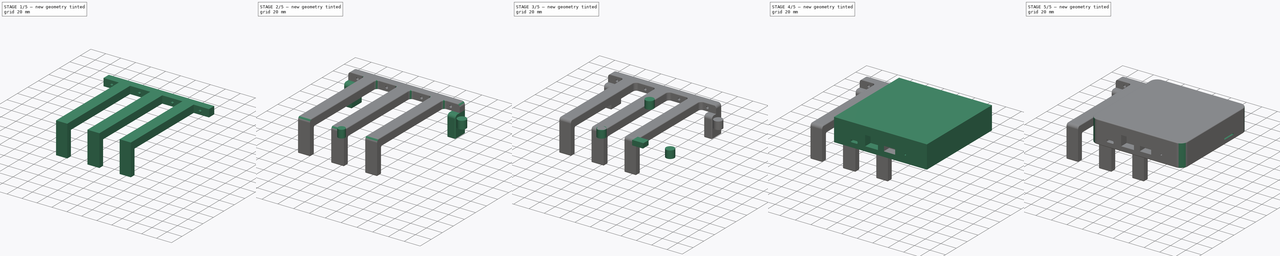
[diagram: build sequence overview — one tinted view per stage of 5, left to right]
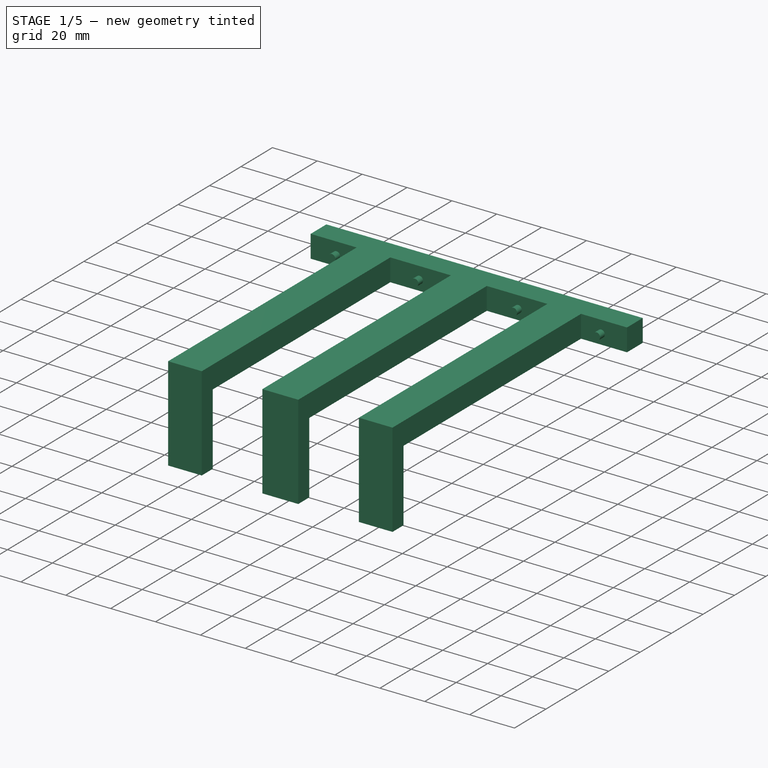
[diagram: stage 1 of 5 — iso view after this stage's code; geometry added in this stage tinted green]
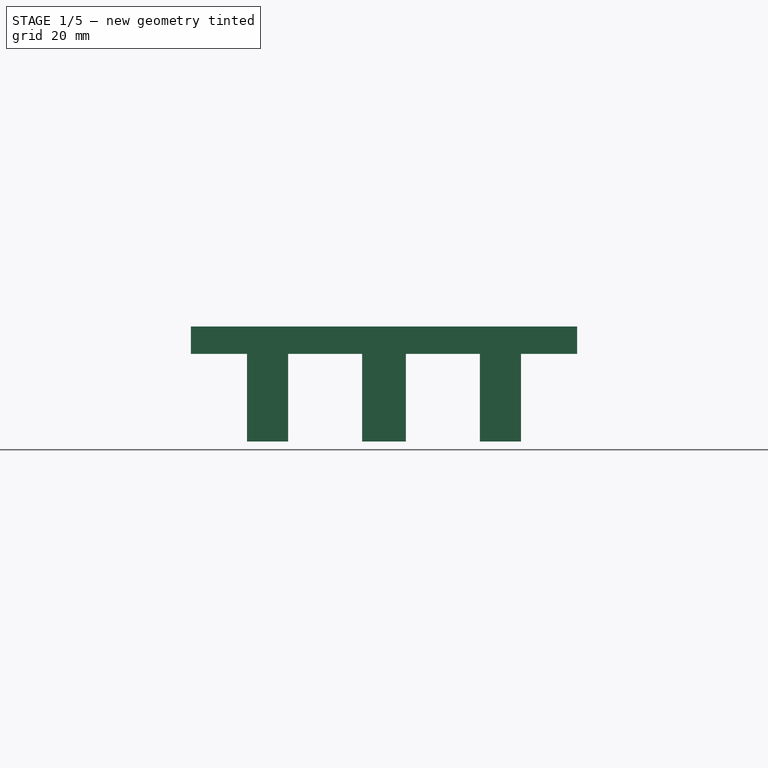
[diagram: stage 1 of 5 — front view after this stage's code; geometry added in this stage tinted green]
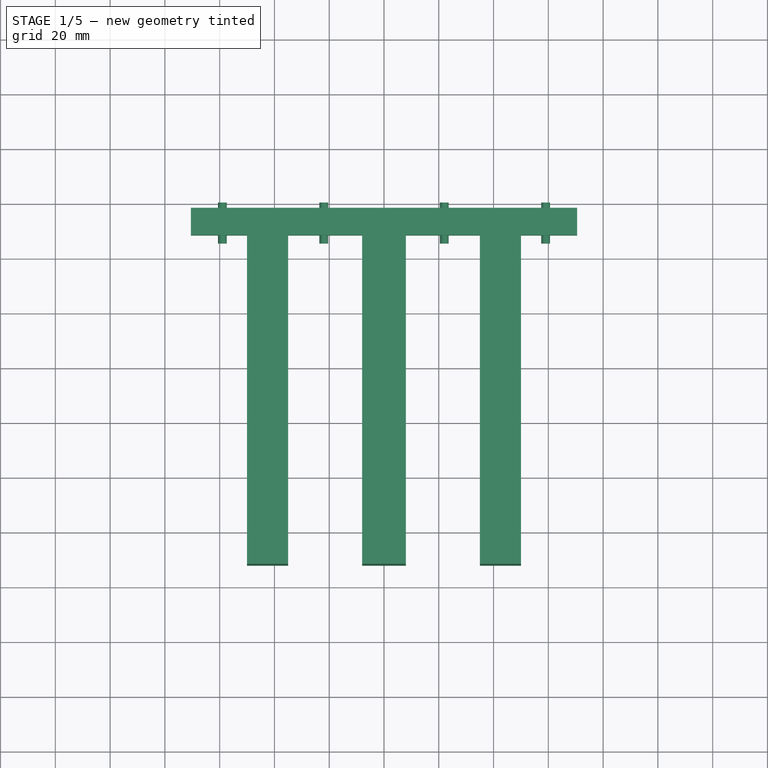
[diagram: stage 1 of 5 — top view after this stage's code; geometry added in this stage tinted green]
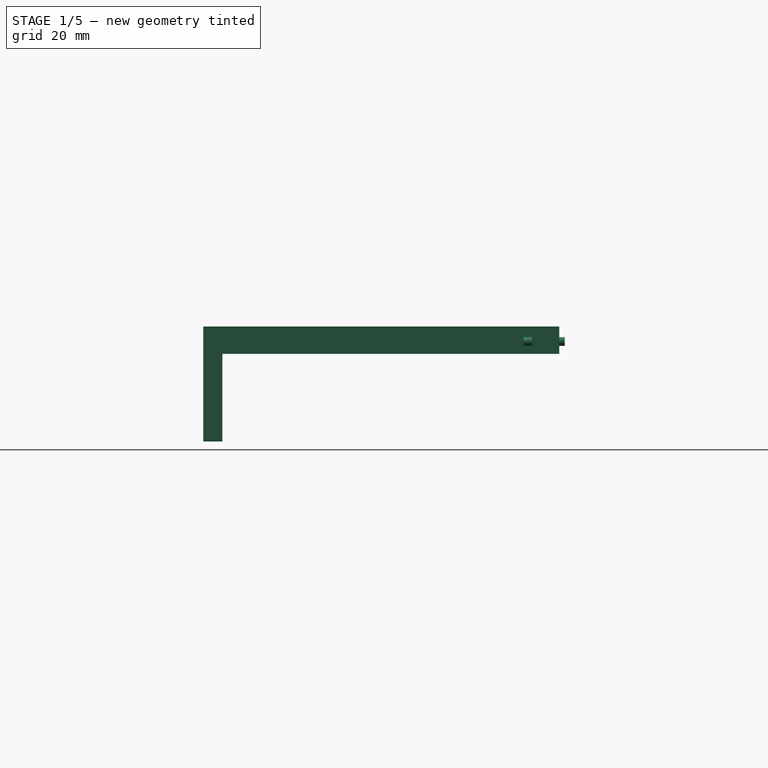
[diagram: stage 1 of 5 — right view after this stage's code; geometry added in this stage tinted green]
FCSTD DOCUMENT  (FreeCAD 1.0R39109 (Git))
Label: LoRaGatewayHolder
License: All rights reserved
LicenseURL: https://en.wikipedia.org/wiki/All_rights_reserved
objects: Part::Feature×23, Part::Cylinder×16, Part::Box×10, Part::Cut×7, Part::MultiFuse×7, Part::Fillet×5, App::Part×4, Sketcher::SketchObject×1, Part::Extrusion×1
note: 71 computed .brp shape members not serialized (recipe doc carries the construction recipe); baked Part::Feature solids carry a one-line shape summary decoded from their .brp

FEATURE [Part::Box] Box031  label="Top_left001"
  AttacherType = Attacher::AttachEngine3D
  Height = 32
  Length = 15
  Placement = pos=(-50,28,-43.5) rot=(0,0,1;0rad)
  Width = 7
FEATURE [Part::Box] Box032  label="Top_right001"
  AttacherType = Attacher::AttachEngine3D
  Height = 32
  Length = 15
  Placement = pos=(35,28,-43.5) rot=(0,0,1;0rad)
  Width = 7
FEATURE [Part::Box] Box033  label="Top_middle001"
  AttacherType = Attacher::AttachEngine3D
  Height = 32
  Length = 16
  Placement = pos=(-8,28,-43.5) rot=(0,0,1;0rad)
  Width = 7
FEATURE [Part::Cylinder] Cylinder023  label="m3_l001"
  Angle = 360
  AttacherType = Attacher::AttachEngine3D
  FirstAngle = 0
  Height = 15
  Placement = pos=(-59,160,-7) rot=(1,0,0;1.5708rad)
  Radius = 1.6
  SecondAngle = 0
FEATURE [Part::Cylinder] Cylinder024  label="m3_r001"
  Angle = 360
  AttacherType = Attacher::AttachEngine3D
  FirstAngle = 0
  Height = 15
  Placement = pos=(59,160,-7) rot=(1,0,0;1.5708rad)
  Radius = 1.6
  SecondAngle = 0
FEATURE [Part::Cylinder] Cylinder025  label="m3_lm001"
  Angle = 360
  AttacherType = Attacher::AttachEngine3D
  FirstAngle = 0
  Height = 15
  Placement = pos=(-22,160,-7) rot=(1,0,0;1.5708rad)
  Radius = 1.6
  SecondAngle = 0
FEATURE [Part::Cylinder] Cylinder026  label="m3_rm001"
  Angle = 360
  AttacherType = Attacher::AttachEngine3D
  FirstAngle = 0
  Height = 15
  Placement = pos=(22,160,-7) rot=(1,0,0;1.5708rad)
  Radius = 1.6
  SecondAngle = 0
FEATURE [Part::MultiFuse] Fusion014  label="m3_screws"
  Shapes = -> [Cylinder023,Cylinder024,Cylinder025,Cylinder026]
FEATURE [Part::Feature] Part__Feature269  label="USB3.1 TYPE-C 24PF-009 v6"
  shape: bbox 9.146 x 4.6 x 10.65 mm, 537 faces (baked)
FEATURE [Part::Feature] Part__Feature270  label="USB3.1 TYPE-C 24PF-009 v007"
  shape: bbox 8.34 x 3.8 x 10 mm, 300 faces (baked)
FEATURE [Part::Feature] Part__Feature271  label="USB3.1 TYPE-C 24PF-009 v008"
  shape: bbox 5.75 x 2.5 x 8.484 mm, 354 faces (baked)
FEATURE [Part::Feature] Part__Feature272  label="COMPOUND019"
  Placement = pos=(0,-0.0056,0.0002) rot=(0,0,1;0rad)
  shape: bbox 0.4 x 3.65 x 1.05 mm, 24 faces (baked)
FEATURE [Part::Feature] Part__Feature273  label="Antenna Mount"
  Placement = pos=(15,63,10.75) rot=(0,0,1;0rad)
  shape: bbox 9.247 x 12.26 x 8.009 mm, 76 faces (baked)
FEATURE [Part::Feature] Part__Feature274  label="COMPOUND020"
  Placement = pos=(0,-0.0056,0.0002) rot=(0,0,1;0rad)
  shape: bbox 18.9 x 15.9 x 13.25 mm, 232 faces (baked)
FEATURE [Part::Feature] Part__Feature275  label="COMPOUND021"
  Placement = pos=(0,-0.0056,0.0002) rot=(0,0,1;0rad)
  shape: bbox 0.4 x 3.65 x 1.05 mm, 24 faces (baked)
FEATURE [Part::Feature] Part__Feature276  label="COMPOUND022"
  Placement = pos=(0,-0.0056,0.0002) rot=(0,0,1;0rad)
  shape: bbox 0.4 x 3.65 x 1.05 mm, 24 faces (baked)
FEATURE [Part::Feature] Part__Feature277  label="COMPOUND023"
  Placement = pos=(0,-0.0056,0.0002) rot=(0,0,1;0rad)
  shape: bbox 0.4 x 3.65 x 1.05 mm, 24 faces (baked)
FEATURE [Part::Feature] Part__Feature278  label="COMPOUND024"
  Placement = pos=(0,-0.0056,0.0002) rot=(0,0,1;0rad)
  shape: bbox 0.4 x 3.65 x 1.05 mm, 24 faces (baked)
FEATURE [Part::Feature] Part__Feature279  label="COMPOUND025"
  Placement = pos=(0,-0.0056,0.0002) rot=(0,0,1;0rad)
  shape: bbox 0.4 x 3.65 x 1.05 mm, 24 faces (baked)
FEATURE [Part::Feature] Part__Feature280  label="COMPOUND026"
  Placement = pos=(0,-0.0056,0.0002) rot=(0,0,1;0rad)
  shape: bbox 0.4 x 3.65 x 1.05 mm, 24 faces (baked)
FEATURE [Part::Feature] Part__Feature281  label="COMPOUND027"
  Placement = pos=(0,-0.0056,0.0002) rot=(0,0,1;0rad)
  shape: bbox 0.4 x 3.65 x 1.05 mm, 24 faces (baked)
FEATURE [Part::Feature] Part__Feature282  label="COMPOUND028"
  Placement = pos=(0,-0.0056,0.0002) rot=(0,0,1;0rad)
  shape: bbox 15.81 x 15.25 x 13.95 mm, 39 faces (baked)
FEATURE [Part::Feature] Part__Feature283  label="COMPOUND029"
  Placement = pos=(0,-0.0056,0.0002) rot=(0,0,1;0rad)
  shape: bbox 0.4 x 11.61 x 3.651 mm, 6 faces (baked)
FEATURE [Part::Feature] Part__Feature284  label="COMPOUND030"
  Placement = pos=(0,-0.0056,0.0002) rot=(0,0,1;0rad)
  shape: bbox 0.4 x 11.61 x 3.651 mm, 6 faces (baked)
FEATURE [Part::Feature] Part__Feature285  label="COMPOUND031"
  Placement = pos=(0,-0.0056,0.0002) rot=(0,0,1;0rad)
  shape: bbox 0.4 x 11.61 x 3.651 mm, 6 faces (baked)
FEATURE [Part::Feature] Part__Feature286  label="COMPOUND032"
  Placement = pos=(0,-0.0056,0.0002) rot=(0,0,1;0rad)
  shape: bbox 0.4 x 11.61 x 3.651 mm, 6 faces (baked)
FEATURE [Part::Feature] Part__Feature287  label="COMPOUND033"
  Placement = pos=(0,-0.0056,0.0002) rot=(0,0,1;0rad)
  shape: bbox 0.4 x 11.61 x 3.651 mm, 6 faces (baked)
FEATURE [Part::Feature] Part__Feature288  label="COMPOUND034"
  Placement = pos=(0,-0.0056,0.0002) rot=(0,0,1;0rad)
  shape: bbox 0.4 x 11.61 x 3.651 mm, 6 faces (baked)
FEATURE [Part::Feature] Part__Feature289  label="COMPOUND035"
  Placement = pos=(0,-0.0056,0.0002) rot=(0,0,1;0rad)
  shape: bbox 0.4 x 11.61 x 3.651 mm, 6 faces (baked)
FEATURE [Part::Feature] Part__Feature290  label="COMPOUND036"
  Placement = pos=(0,-0.0056,0.0002) rot=(0,0,1;0rad)
  shape: bbox 0.4 x 11.61 x 3.651 mm, 6 faces (baked)
FEATURE [App::Part] COMPOUND001  label="COMPOUND018"
  Group = -> [Part__Feature274,Part__Feature275,Part__Feature276,Part__Feature272,Part__Feature277,Part__Feature278,Part__Feature279,Part__Feature280,Part__Feature281,Part__Feature282,Part__Feature283,Part__Feature284,Part__Feature285,Part__Feature286,Part__Feature287,Part__Feature288,Part__Feature289,Part__Feature290]
  Origin = -> Origin029
  Placement = pos=(48.5,5.5,19.25) rot=(0,1,0;3.14159rad)
FEATURE [Part::Feature] Part__Feature291  label="USB-type-A(USBR-A-S-F-O-VU)"
  Placement = pos=(71.75,7.25,6.75) rot=(1,0,0;1.5708rad)
  shape: bbox 18.32 x 19.2 x 7.2 mm, 244 faces (baked)
FEATURE [Sketcher::SketchObject] Sketch003
  ArcFitTolerance = 0
  FullyConstrained = true
  MakeInternals = false
  sketch-geometry (16):
    g0: LineSegment StartX=-70.5 StartY=157.37 StartZ=0 EndX=70.5 EndY=157.37 EndZ=0
    g1: LineSegment StartX=-70.5 StartY=157.37 StartZ=0 EndX=-70.5 EndY=147.37 EndZ=0
    g2: LineSegment StartX=-70.5 StartY=147.37 StartZ=0 EndX=-50 EndY=147.37 EndZ=0
    g3: LineSegment StartX=-50 StartY=147.37 StartZ=0 EndX=-50 EndY=27.37 EndZ=0
    g4: LineSegment StartX=-50 StartY=27.37 StartZ=0 EndX=-35 EndY=27.37 EndZ=0
    g5: LineSegment StartX=-35 StartY=27.37 StartZ=0 EndX=-35 EndY=147.37 EndZ=0
    g6: LineSegment StartX=-35 StartY=147.37 StartZ=0 EndX=-8 EndY=147.37 EndZ=0
    g7: LineSegment StartX=-8 StartY=147.37 StartZ=0 EndX=-8 EndY=27.37 EndZ=0
    g8: LineSegment StartX=-8 StartY=27.37 StartZ=0 EndX=8 EndY=27.37 EndZ=0
    g9: LineSegment StartX=8 StartY=27.37 StartZ=0 EndX=8 EndY=147.37 EndZ=0
    g10: LineSegment StartX=8 StartY=147.37 StartZ=0 EndX=35 EndY=147.37 EndZ=0
    g11: LineSegment StartX=35 StartY=147.37 StartZ=0 EndX=35 EndY=27.37 EndZ=0
    g12: LineSegment StartX=35 StartY=27.37 StartZ=0 EndX=50 EndY=27.37 EndZ=0
    g13: LineSegment StartX=50 StartY=27.37 StartZ=0 EndX=50 EndY=147.37 EndZ=0
    g14: LineSegment StartX=50 StartY=147.37 StartZ=0 EndX=70.5 EndY=147.37 EndZ=0
    g15: LineSegment StartX=70.5 StartY=147.37 StartZ=0 EndX=70.5 EndY=157.37 EndZ=0
  constraints (44):
    c: Symmetric(g0,g0,g-2)
    c: Distance(g0) = 141
    c: Coincident(g1,g0)
    c: Vertical(g1)
    c: Coincident(g2,g1)
    c: Horizontal(g2)
    c: Vertical(g3)
    c: Coincident(g4,g3)
    c: Horizontal(g4)
    c: Coincident(g5,g4)
    c: Vertical(g5)
    c: Coincident(g6,g5)
    c: Horizontal(g6)
    c: Coincident(g7,g6)
    c: Vertical(g7)
    c: Coincident(g8,g7)
    c: Horizontal(g8)
    c: Coincident(g9,g8)
    c: Vertical(g9)
    c: Coincident(g10,g9)
    c: Coincident(g11,g10)
    c: Vertical(g11)
    c: Coincident(g12,g11)
    c: Horizontal(g12)
    c: Coincident(g13,g12)
    c: Vertical(g13)
    c: Coincident(g14,g13)
    c: Horizontal(g14)
    c: Coincident(g15,g14)
    c: Coincident(g15,g0)
    c: Vertical(g15)
    c: Symmetric(g6,g9,g-2)
    c: Symmetric(g5,g10,g-2)
    c: Symmetric(g2,g13,g-2)
    c: Coincident(g2,g3)
    c: Distance(g2,g0) = 10
    c: Distance(g5,g0) = 10
    c: Distance(g3) = 120
    c: Distance(g4) = 15
    c: Distance(g8) = 16
    c: Distance(g9) = 120
    c: Distance(g13) = 120
    c: Distance(g1,g-1) = 147.37
    c: Distance(g3,g-2) = 50
FEATURE [Part::Extrusion] Extrude003  label="Side__hold001"
  Base = -> Sketch003
  Dir = (0,0,1)
  DirMode = 2
  FaceMakerClass = Part::FaceMakerBullseye
  FaceMakerMode = 3
  LengthFwd = 10
  LengthRev = 0
  Placement = pos=(0,0.63,-1.5) rot=(0,0,1;0rad)
  Reversed = true
  Solid = true
  Symmetric = false
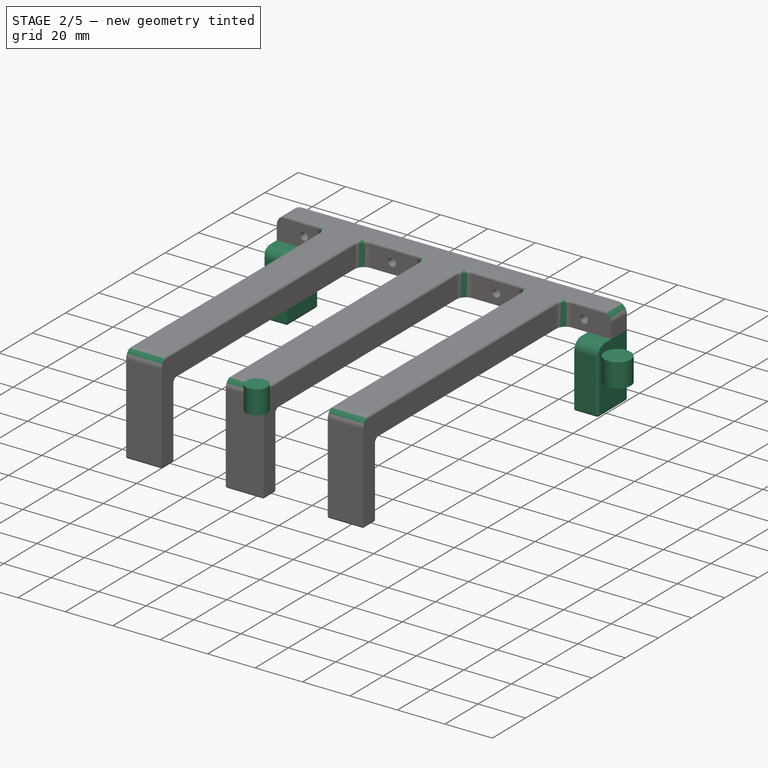
[diagram: stage 2 of 5 — iso view after this stage's code; geometry added in this stage tinted green]
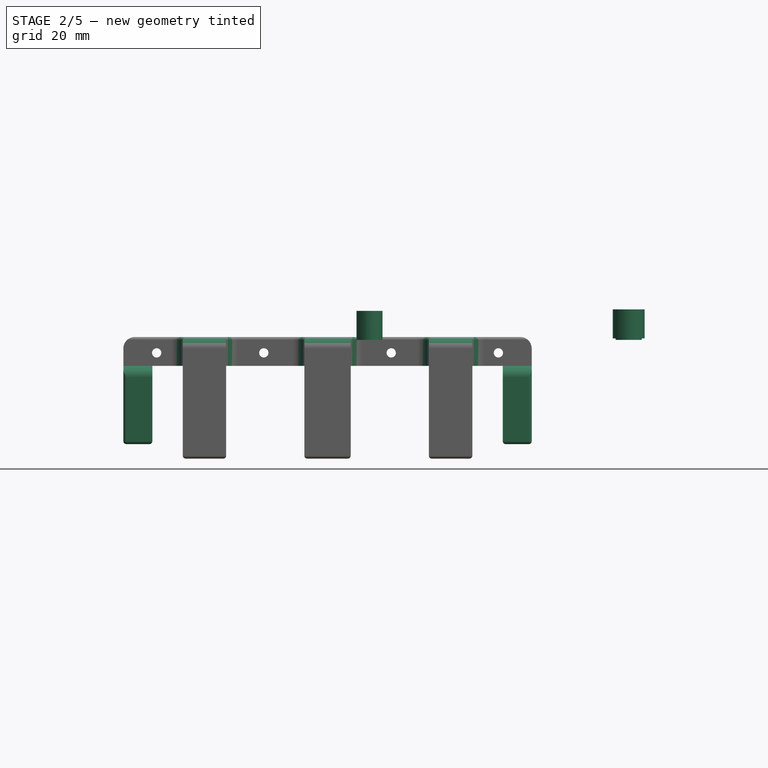
[diagram: stage 2 of 5 — front view after this stage's code; geometry added in this stage tinted green]
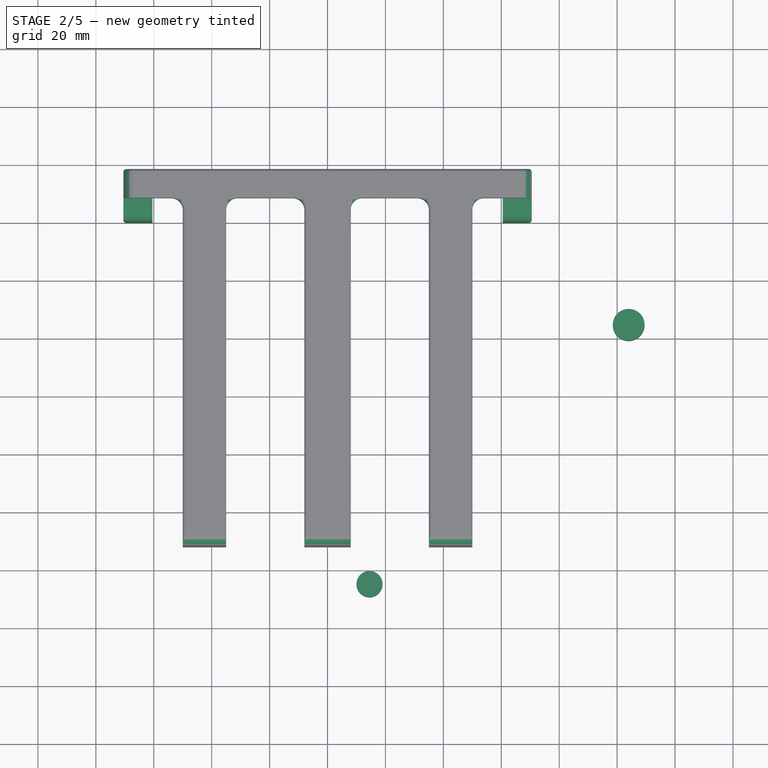
[diagram: stage 2 of 5 — top view after this stage's code; geometry added in this stage tinted green]
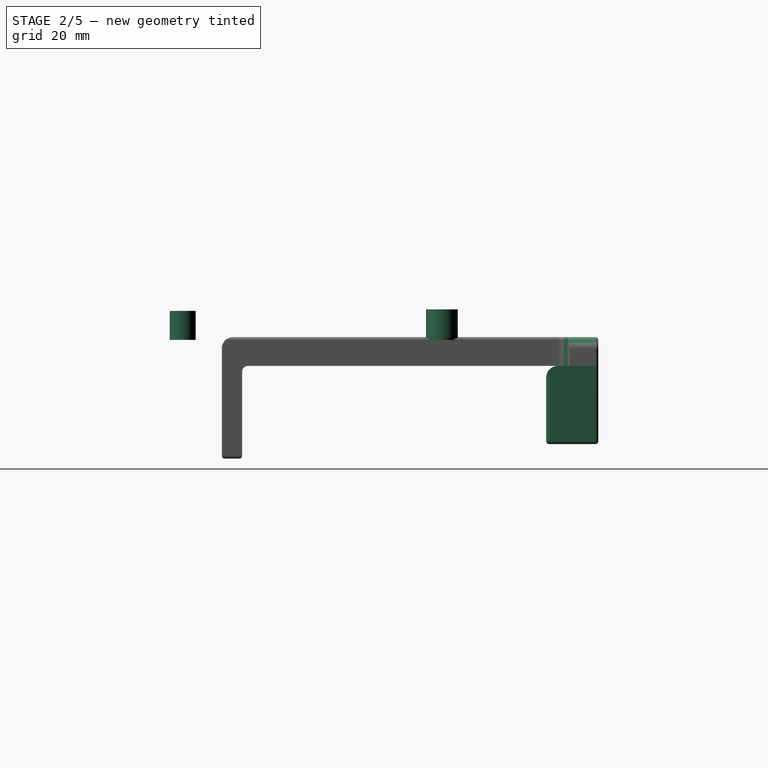
[diagram: stage 2 of 5 — right view after this stage's code; geometry added in this stage tinted green]
FEATURE [Part::Box] Box029  label="Bottom_left001"
  AttacherType = Attacher::AttachEngine3D
  Height = 27
  Length = 10
  Placement = pos=(-70.5,140,-38.5) rot=(0,0,1;0rad)
  Width = 18
FEATURE [Part::Box] Box030  label="Bottom_right001"
  AttacherType = Attacher::AttachEngine3D
  Height = 27
  Length = 10
  Placement = pos=(60.5,140,-38.5) rot=(0,0,1;0rad)
  Width = 18
FEATURE [Part::Cylinder] Cylinder014
  Angle = 360
  AttacherType = Attacher::AttachEngine3D
  FirstAngle = 0
  Height = 10
  Placement = pos=(14.5,14.5,-2.5) rot=(0,0,1;0rad)
  Radius = 4.5
  SecondAngle = 0
FEATURE [Part::Cylinder] Cylinder017
  Angle = 360
  AttacherType = Attacher::AttachEngine3D
  FirstAngle = 0
  Height = 10
  Placement = pos=(14.5,14.5,-2) rot=(0,0,1;0rad)
  Radius = 5.5
  SecondAngle = 0
FEATURE [Part::Cylinder] Cylinder018
  Angle = 360
  AttacherType = Attacher::AttachEngine3D
  FirstAngle = 0
  Height = 10
  Placement = pos=(14.5,14.5,-2.5) rot=(0,0,1;0rad)
  Radius = 4.5
  SecondAngle = 0
FEATURE [Part::MultiFuse] Fusion010  label="base_pad004"
  Placement = pos=(89.5,89.5,0) rot=(0,0,1;0rad)
  Shapes = -> [Cylinder017,Cylinder018]
FEATURE [Part::MultiFuse] Fusion013  label="Holder_gateway"
  Shapes = -> [Extrude003,Box029,Box030,Box031,Box032,Box033]
FEATURE [Part::Cut] Cut018  label="Holder_m3_cut"
  Base = -> Fusion013
  Tool = -> Fusion014
FEATURE [Part::Fillet] Fillet013  label="GateWay_Holder"
  Base = -> Cut018
  EdgeLinks = -> Cut018 [Edge1,Edge2,Edge4,Edge12,Edge14,Edge15,Edge16,Edge17,Edge18,Edge19,Edge20,Edge21,Edge22,Edge23,Edge24,Edge25,Edge26,Edge27,Edge28,Edge30,Edge36,Edge40,Edge44,Edge48,Edge49,Edge60,Edge61,Edge63,Edge64,Edge70,Edge72,Edge77,Edge79,Edge85,Edge86,Edge89,Edge91,Edge94,Edge95,Edge98,+13 more]
  Edges = 53 edges: [Edge1 r=1,Edge2 r=1,Edge4 r=1,Edge12 r=4,Edge14 r=4,Edge15 r=1,Edge16 r=1,Edge17 r=4,Edge18 r=1,Edge19 r=1,Edge20 r=1,Edge21 r=4,Edge22 r=1,Edge23 r=1,Edge24 r=1,Edge25 r=4,Edge26 r=1,Edge27 r=1,Edge28 r=1,Edge30 r=1,Edge36 r=2,Edge40 r=2,Edge44 r=2,Edge48 r=1,Edge49 r=1,Edge60 r=4,Edge61 r=1,Edge63 r=1,Edge64 r=4,Edge70 r=4,Edge72 r=4,Edge77 r=4,Edge79 r=4,Edge85 r=1,Edge86 r=1,Edge89 r=1,Edge91 r=1,Edge94 r=1,Edge95 r=1,Edge98 r=1,Edge101 r=1,Edge104 r=1,Edge105 r=4,Edge106 r=4,Edge108 r=1,Edge109 r=1,Edge111 r=1,Edge113 r=1,Edge114 r=1,Edge116 r=1,Edge118 r=1,Edge119 r=1,Edge121 r=1]
FEATURE [App::Part] Part007  label="LoRa_Gateway_holder"
  Group = -> [Cylinder024,Cylinder026,Cylinder023,Cylinder025,Extrude003,Fusion013,Fusion014,Sketch003,Box030,Box029,Box031,Box033,Box032,Cut018,Fillet013]
  Origin = -> Origin031
  Placement = pos=(127,0,-3) rot=(0,1,0;4.71239rad)
FEATURE [App::Part] USB3_1_TYPE_C_24PF_009_v6  label="USB3.1 TYPE-C 24PF-009 v009"
  Group = -> [Part__Feature269,Part__Feature270,Part__Feature271]
  Origin = -> Origin028
  Placement = pos=(26,9.3,7.5) rot=(1,0,0;1.5708rad)
FEATURE [App::Part] Part005  label="LoRa_Gateway"
  Group = -> [Cylinder007,Part__Feature273,Cylinder009,Cylinder008,Cut011,USB3_1_TYPE_C_24PF_009_v6,COMPOUND001,Part__Feature291,Box021,Box019,Cut015,Cut012,Cut016,Box020,Cylinder010,Cylinder012,Cylinder011,Cylinder017,Cylinder013,Cylinder014,Cylinder015,Cylinder016,Cylinder018,Box023,Fusion010,Box022,Fillet010,Fillet009,Cut013,Fusion002,Cut014,Fusion008,Fusion009,Fillet008,Fusion004,Fillet011]
  Origin = -> Origin027
  Placement = pos=(169,156,-63) rot=(0.57735,-0.57735,-0.57735;2.0944rad)
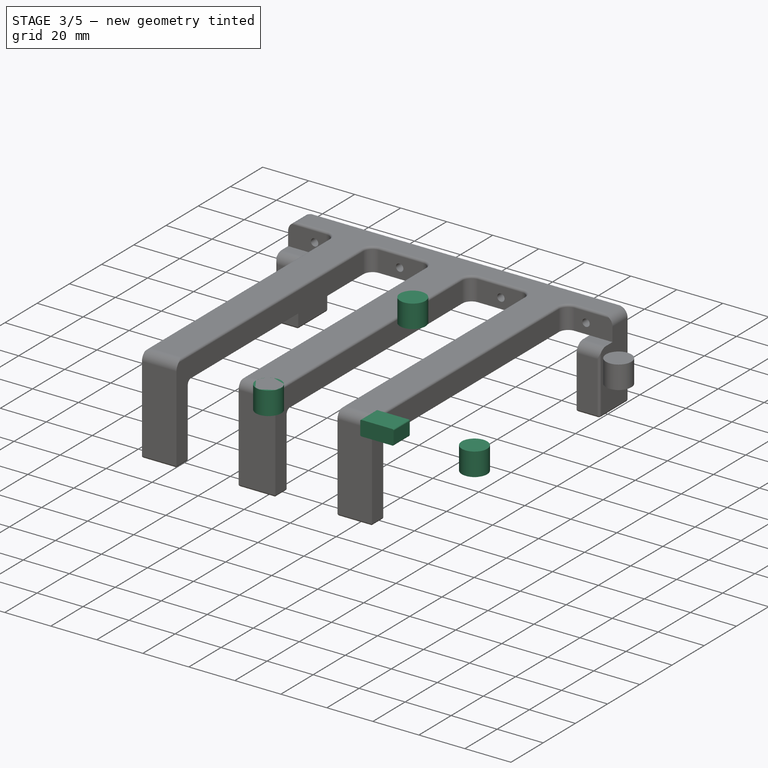
[diagram: stage 3 of 5 — iso view after this stage's code; geometry added in this stage tinted green]
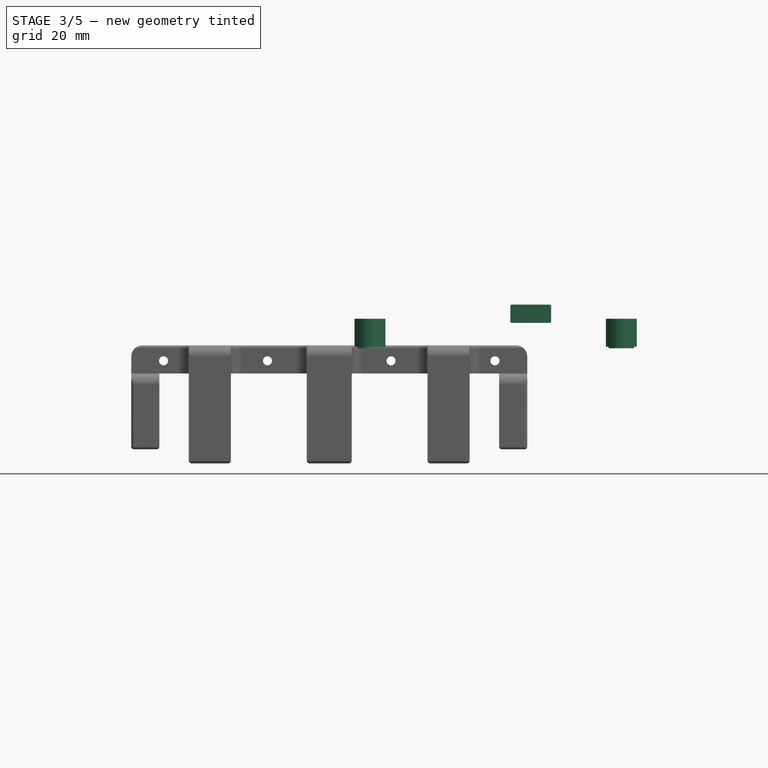
[diagram: stage 3 of 5 — front view after this stage's code; geometry added in this stage tinted green]
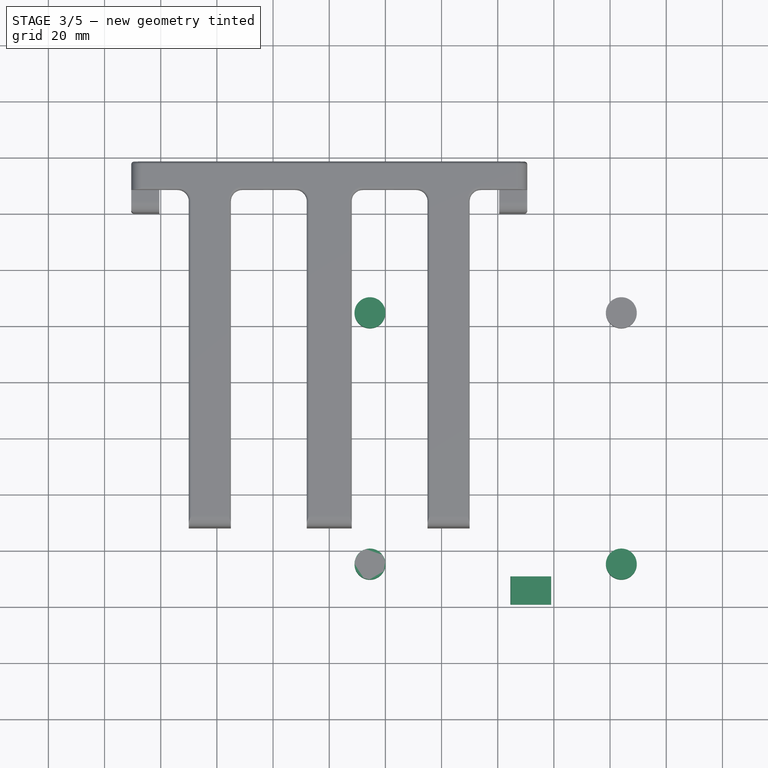
[diagram: stage 3 of 5 — top view after this stage's code; geometry added in this stage tinted green]
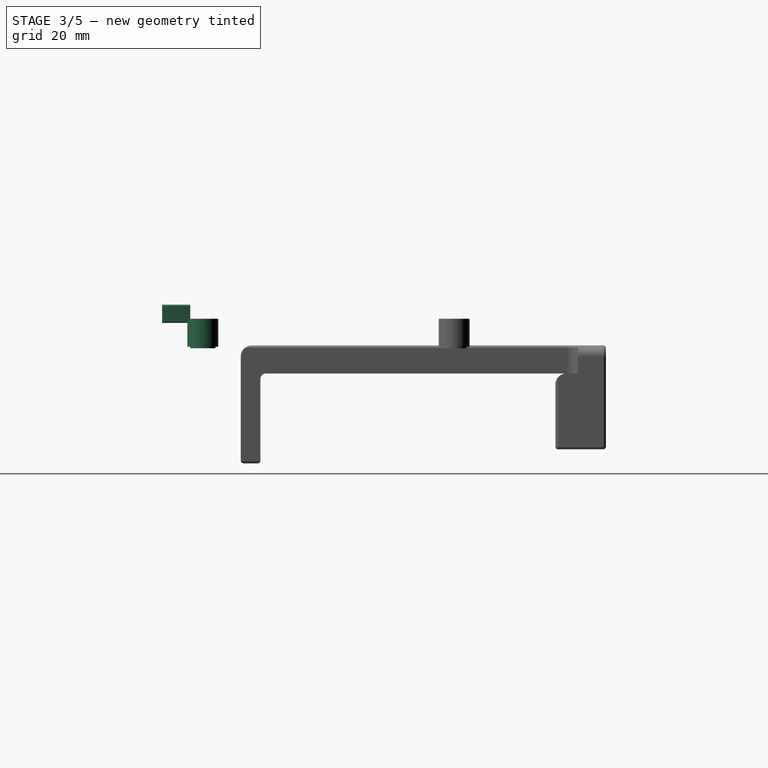
[diagram: stage 3 of 5 — right view after this stage's code; geometry added in this stage tinted green]
FEATURE [Part::Box] Box022  label="Cube017"
  AttacherType = Attacher::AttachEngine3D
  Height = 6.5
  Length = 14.5
  Width = 10
FEATURE [Part::Cylinder] Cylinder011
  Angle = 360
  AttacherType = Attacher::AttachEngine3D
  FirstAngle = 0
  Height = 10
  Placement = pos=(14.5,14.5,-2) rot=(0,0,1;0rad)
  Radius = 5.5
  SecondAngle = 0
FEATURE [Part::Cylinder] Cylinder012
  Angle = 360
  AttacherType = Attacher::AttachEngine3D
  FirstAngle = 0
  Height = 10
  Placement = pos=(14.5,14.5,-2.5) rot=(0,0,1;0rad)
  Radius = 4.5
  SecondAngle = 0
FEATURE [Part::Cylinder] Cylinder013
  Angle = 360
  AttacherType = Attacher::AttachEngine3D
  FirstAngle = 0
  Height = 10
  Placement = pos=(14.5,14.5,-2) rot=(0,0,1;0rad)
  Radius = 5.5
  SecondAngle = 0
FEATURE [Part::Cylinder] Cylinder015
  Angle = 360
  AttacherType = Attacher::AttachEngine3D
  FirstAngle = 0
  Height = 10
  Placement = pos=(14.5,14.5,-2) rot=(0,0,1;0rad)
  Radius = 5.5
  SecondAngle = 0
FEATURE [Part::Cylinder] Cylinder016
  Angle = 360
  AttacherType = Attacher::AttachEngine3D
  FirstAngle = 0
  Height = 10
  Placement = pos=(14.5,14.5,-2.5) rot=(0,0,1;0rad)
  Radius = 4.5
  SecondAngle = 0
FEATURE [Part::Fillet] Fillet009  label="USB_Hole"
  Base = -> Box022
  EdgeLinks = -> Box022 [Edge2,Edge4,Edge6,Edge8]
  Edges = 4 edges r=0.5: [Edge2,Edge4,Edge6,Edge8]
  Placement = pos=(64.5,0,6.5) rot=(0,0,1;0rad)
FEATURE [Part::MultiFuse] Fusion002  label="base_pad003"
  Placement = pos=(89.5,0,0) rot=(0,0,1;0rad)
  Shapes = -> [Cylinder015,Cylinder016]
FEATURE [Part::MultiFuse] Fusion008  label="base_pad001"
  Shapes = -> [Cylinder011,Cylinder012]
FEATURE [Part::MultiFuse] Fusion009  label="base_pad002"
  Placement = pos=(0,89.5,0) rot=(0,0,1;0rad)
  Shapes = -> [Cylinder013,Cylinder014]
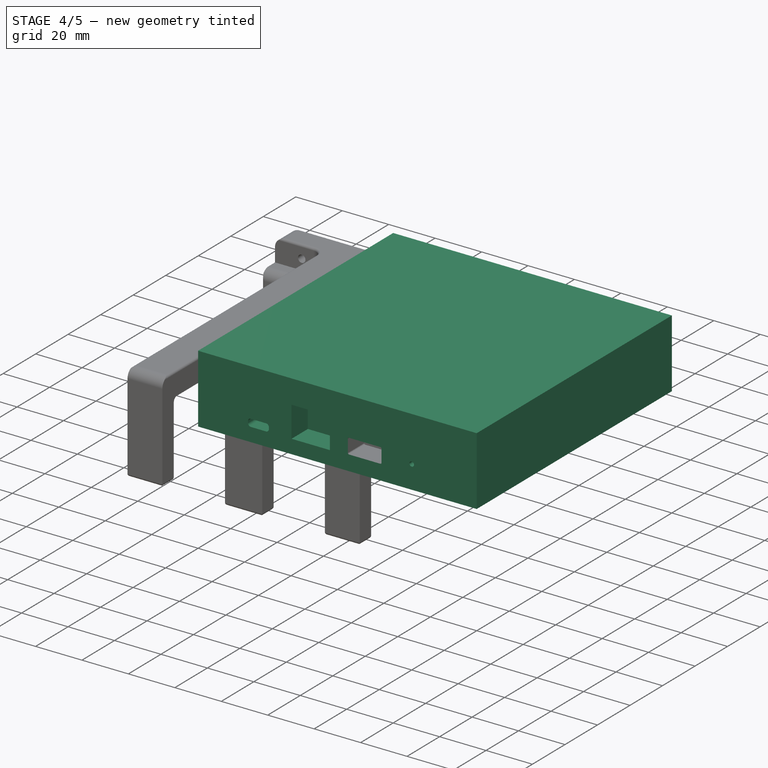
[diagram: stage 4 of 5 — iso view after this stage's code; geometry added in this stage tinted green]
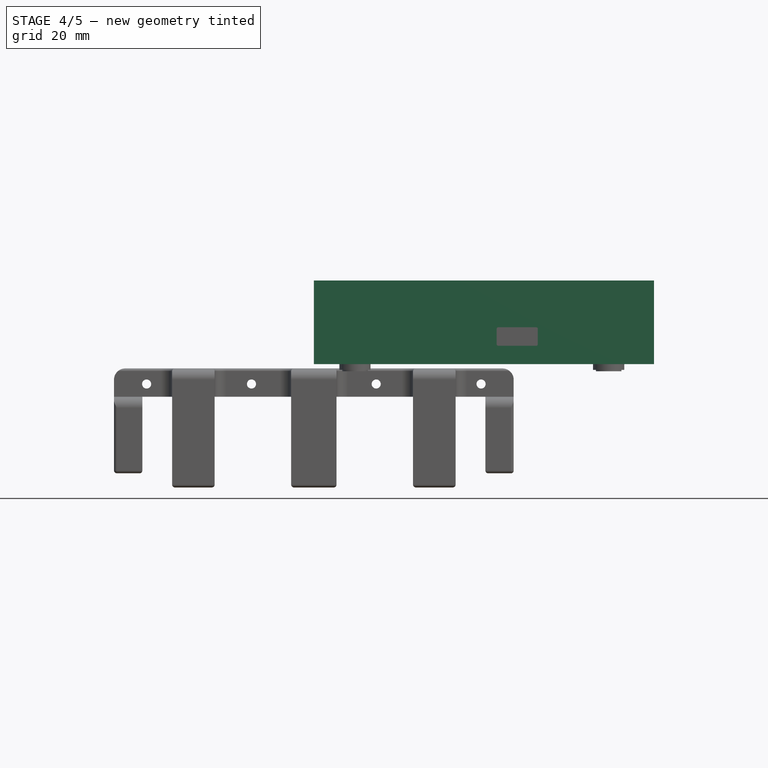
[diagram: stage 4 of 5 — front view after this stage's code; geometry added in this stage tinted green]
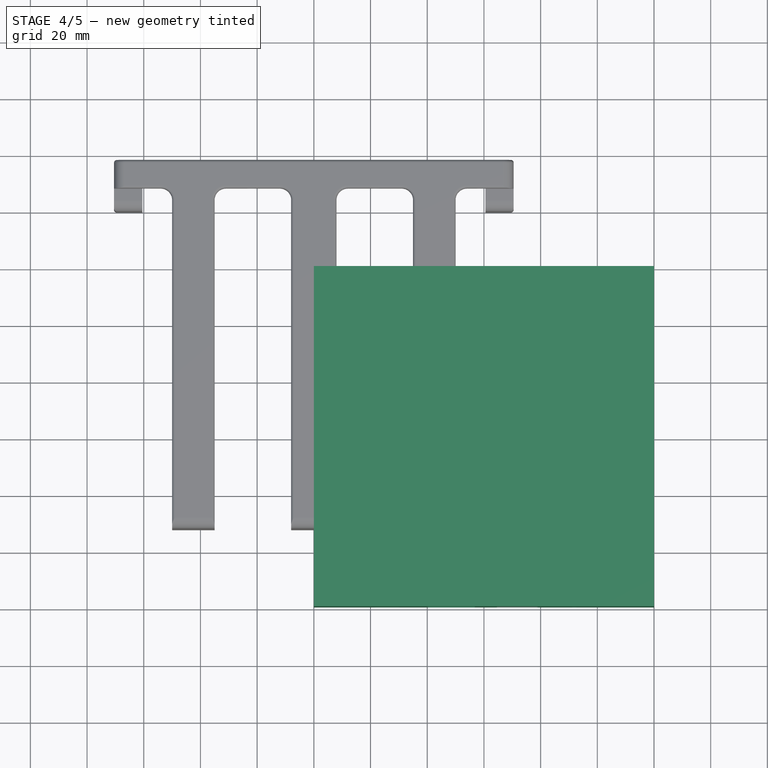
[diagram: stage 4 of 5 — top view after this stage's code; geometry added in this stage tinted green]
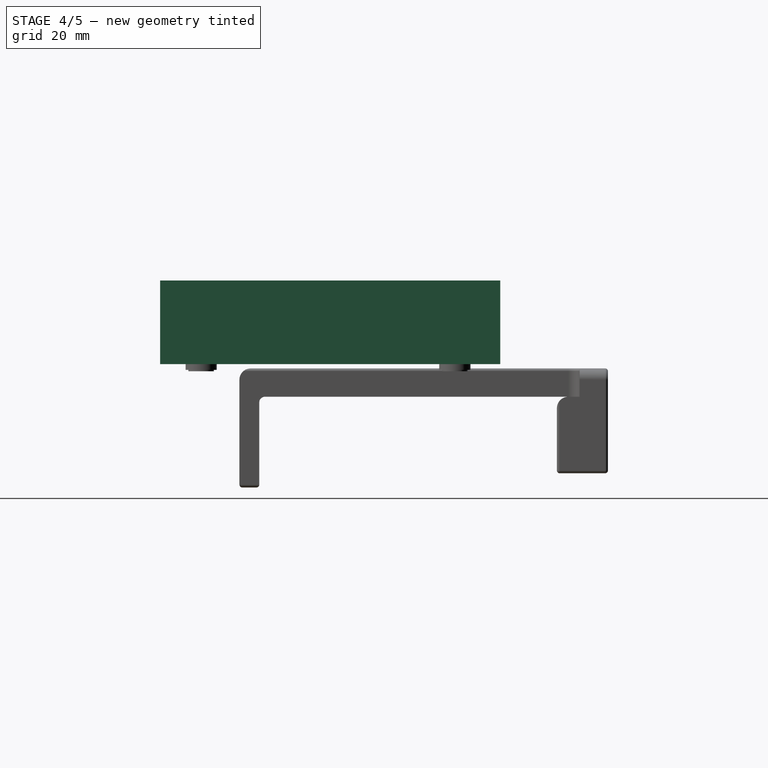
[diagram: stage 4 of 5 — right view after this stage's code; geometry added in this stage tinted green]
FEATURE [Part::Box] Box019  label="Cube014"
  AttacherType = Attacher::AttachEngine3D
  Height = 29.5
  Length = 120
  Width = 120
FEATURE [Part::Box] Box020  label="Cube015"
  AttacherType = Attacher::AttachEngine3D
  Height = 3.17
  Length = 9
  Placement = pos=(21.5,-6,5.92) rot=(0,0,1;0rad)
  Width = 10
FEATURE [Part::Box] Box021  label="Cube016"
  AttacherType = Attacher::AttachEngine3D
  Height = 13.25
  Length = 16.5
  Placement = pos=(40.25,0,6) rot=(0,0,1;0rad)
  Width = 10
FEATURE [Part::Cylinder] Cylinder010
  Angle = 360
  AttacherType = Attacher::AttachEngine3D
  FirstAngle = 0
  Height = 10
  Placement = pos=(92,10,10) rot=(1,0,0;1.5708rad)
  Radius = 1
  SecondAngle = 0
FEATURE [Part::Fillet] Fillet008
  Base = -> Box020
  EdgeLinks = -> Box020 [Edge2,Edge4,Edge6,Edge8]
  Edges = 4 edges r=1.2: [Edge2,Edge4,Edge6,Edge8]
  Placement = pos=(0,6,0) rot=(0,0,1;0rad)
FEATURE [Part::Cut] Cut012  label="USB-C_cut"
  Base = -> Box019
  Tool = -> Fillet008
FEATURE [Part::Cut] Cut013  label="RJ45_Cut"
  Base = -> Cut012
  Tool = -> Box021
FEATURE [Part::Cut] Cut014  label="USB_Hole_Cut"
  Base = -> Cut013
  Tool = -> Fillet009
FEATURE [Part::Cut] Cut015  label="LED_Cut"
  Base = -> Cut014
  Tool = -> Cylinder010
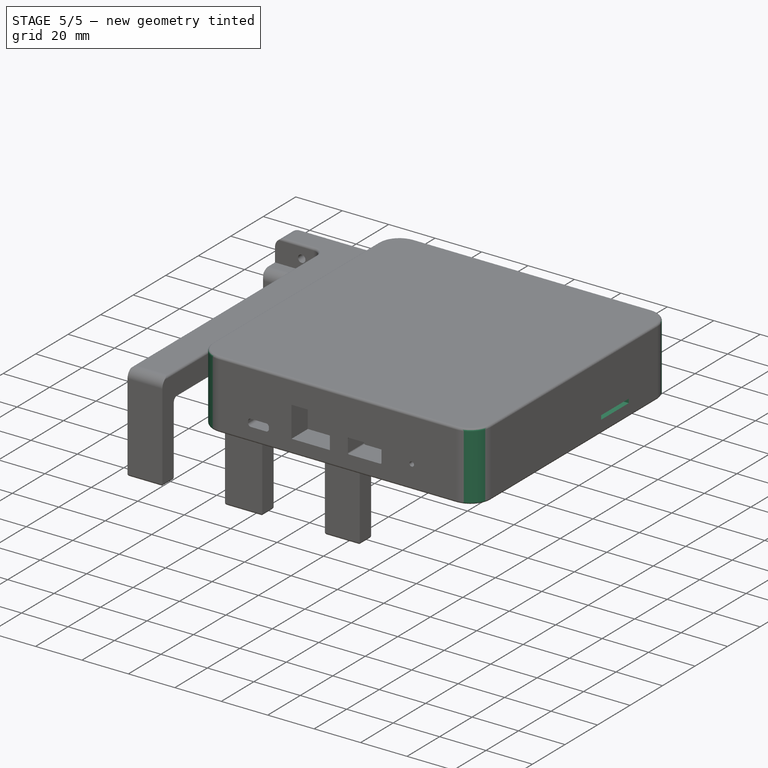
[diagram: stage 5 of 5 — iso view after this stage's code; geometry added in this stage tinted green]
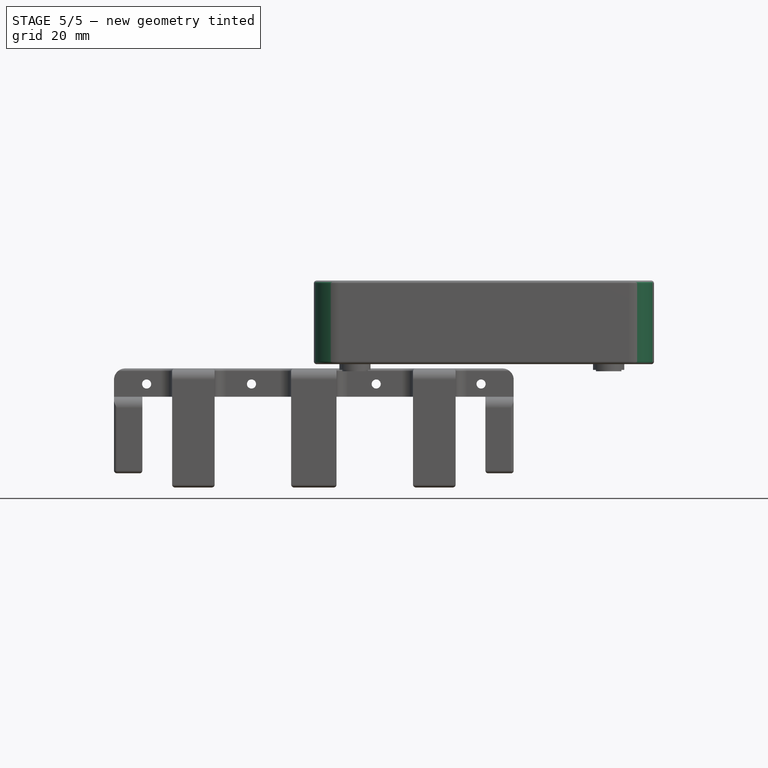
[diagram: stage 5 of 5 — front view after this stage's code; geometry added in this stage tinted green]
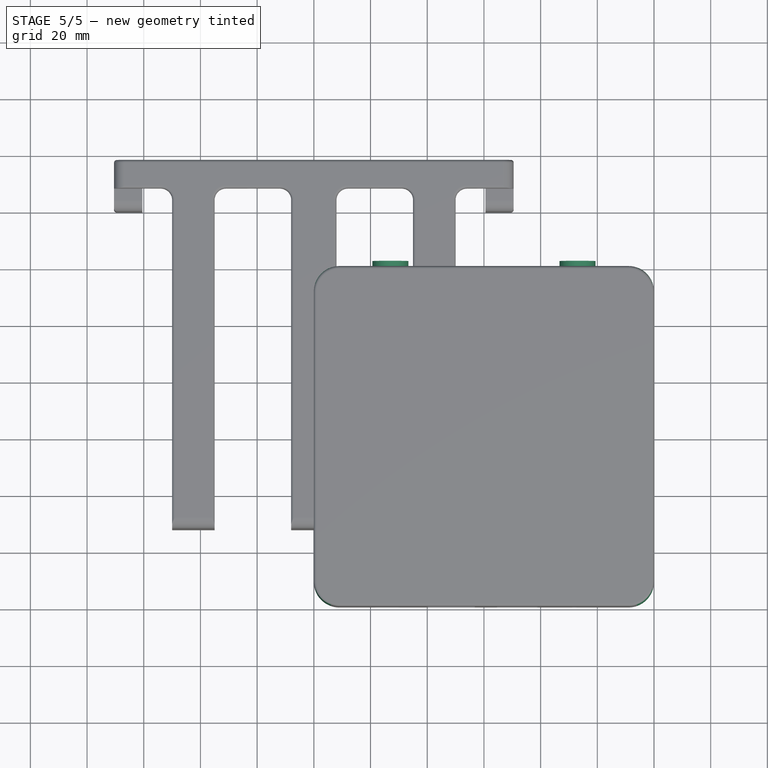
[diagram: stage 5 of 5 — top view after this stage's code; geometry added in this stage tinted green]
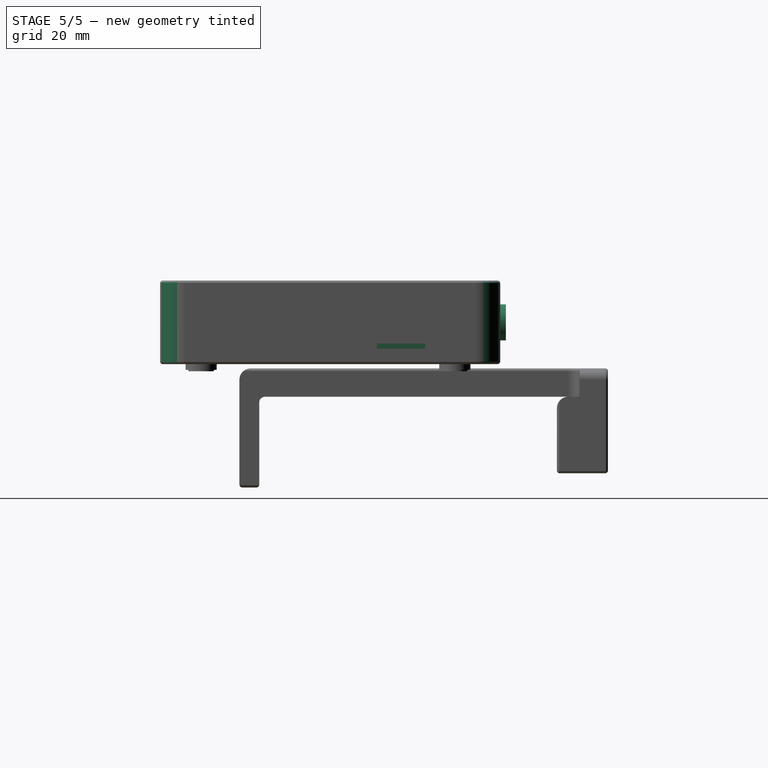
[diagram: stage 5 of 5 — right view after this stage's code; geometry added in this stage tinted green]
FEATURE [Part::Box] Box023  label="Cube018"
  AttacherType = Attacher::AttachEngine3D
  Height = 1.75
  Length = 10
  Placement = pos=(110,76.5,5.5) rot=(0,0,1;0rad)
  Width = 17
FEATURE [Part::Cylinder] Cylinder007
  Angle = 360
  AttacherType = Attacher::AttachEngine3D
  FirstAngle = 0
  Height = 10
  Placement = pos=(27,112,14.75) rot=(-1,0,0;1.5708rad)
  Radius = 6.35
  SecondAngle = 0
FEATURE [Part::Cylinder] Cylinder008
  Angle = 360
  AttacherType = Attacher::AttachEngine3D
  FirstAngle = 0
  Height = 10
  Placement = pos=(93,112,14.75) rot=(-1,0,0;1.5708rad)
  Radius = 6.35
  SecondAngle = 0
FEATURE [Part::Cylinder] Cylinder009
  Angle = 360
  AttacherType = Attacher::AttachEngine3D
  FirstAngle = 0
  Height = 3
  Placement = pos=(93,119,14.75) rot=(-1,0,0;1.5708rad)
  Radius = 5.85
  SecondAngle = 0
FEATURE [Part::Cut] Cut011  label="4g"
  Base = -> Cylinder008
  Tool = -> Cylinder009
FEATURE [Part::Cut] Cut016  label="sim_cut"
  Base = -> Cut015
  Tool = -> Box023
FEATURE [Part::Fillet] Fillet010  label="Box"
  Base = -> Cut016
  EdgeLinks = -> Cut016 [Edge1,Edge3,Edge6,Edge32]
  Edges = 4 edges r=9: [Edge1,Edge3,Edge6,Edge32]
FEATURE [Part::MultiFuse] Fusion004  label="Gateway_box"
  Shapes = -> [Fillet010,Fusion008,Fusion009,Fusion002,Fusion010]
FEATURE [Part::Fillet] Fillet011  label="GateWay_Box"
  Base = -> Fusion004
  EdgeLinks = -> Fusion004 [Edge1,Edge3,Edge5,Edge6,Edge7,Edge8,Edge9,Edge10,Edge11,Edge12,Edge14,Edge15,Edge16,Edge17,Edge18,Edge19]
  Edges = 16 edges r=1: [Edge1,Edge3,Edge5,Edge6,Edge7,Edge8,Edge9,Edge10,Edge11,Edge12,Edge14,Edge15,Edge16,Edge17,Edge18,Edge19]
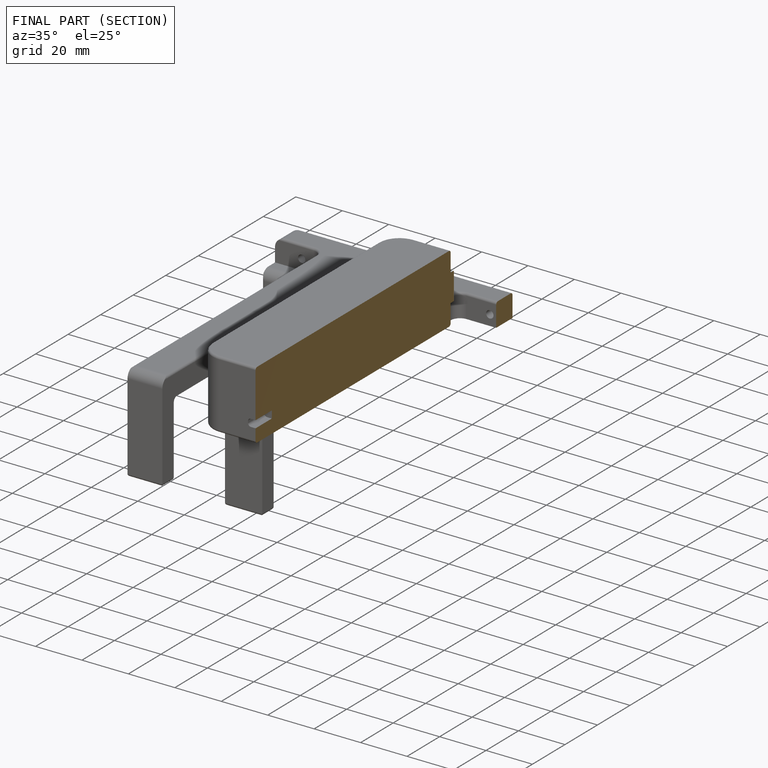
[diagram: finished part — half-section view (interior)]
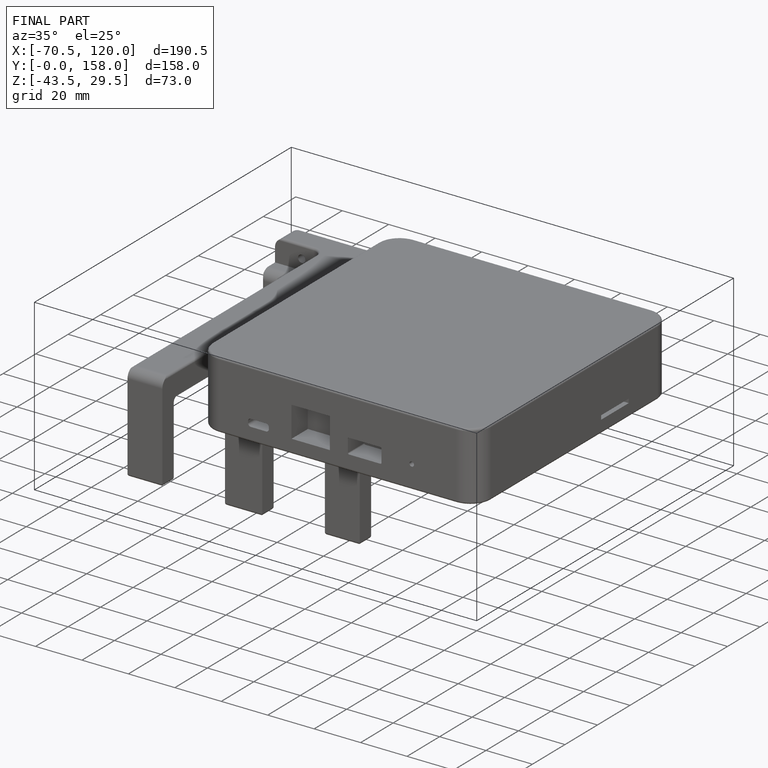
[diagram: finished part — iso view with bounding-box wireframe]
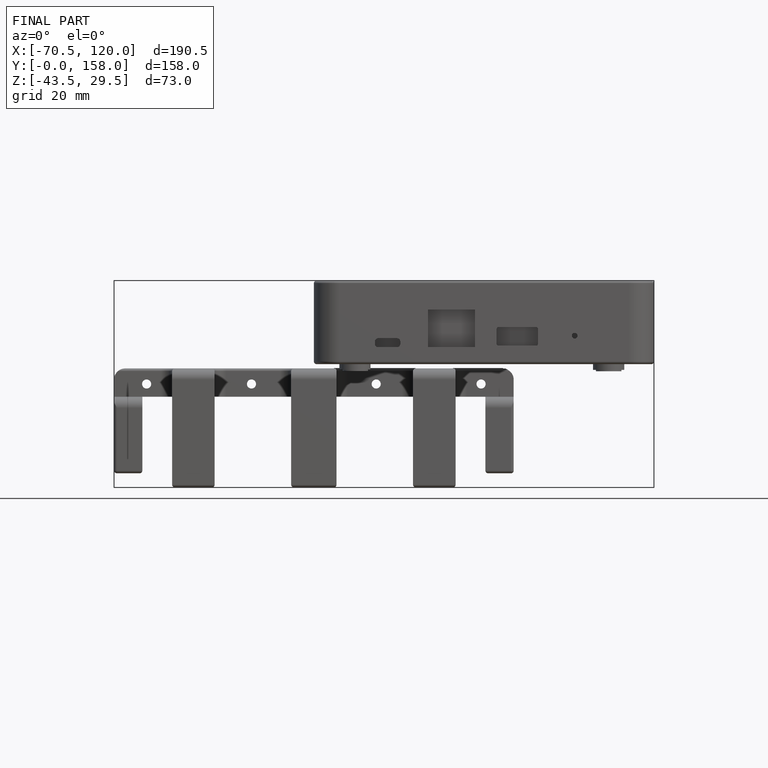
[diagram: finished part — front view with bounding-box wireframe]
